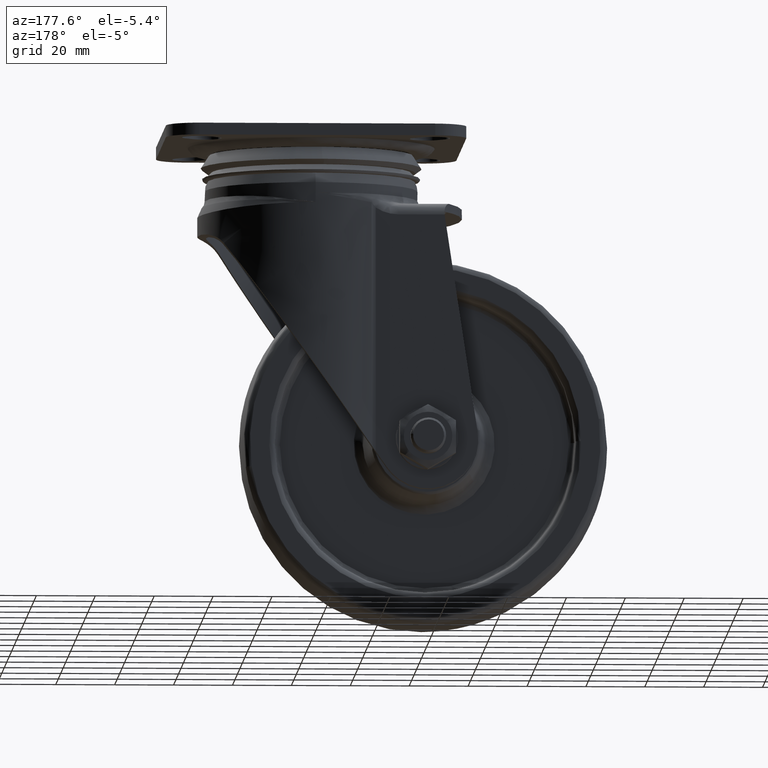
[diagram: clean part render]
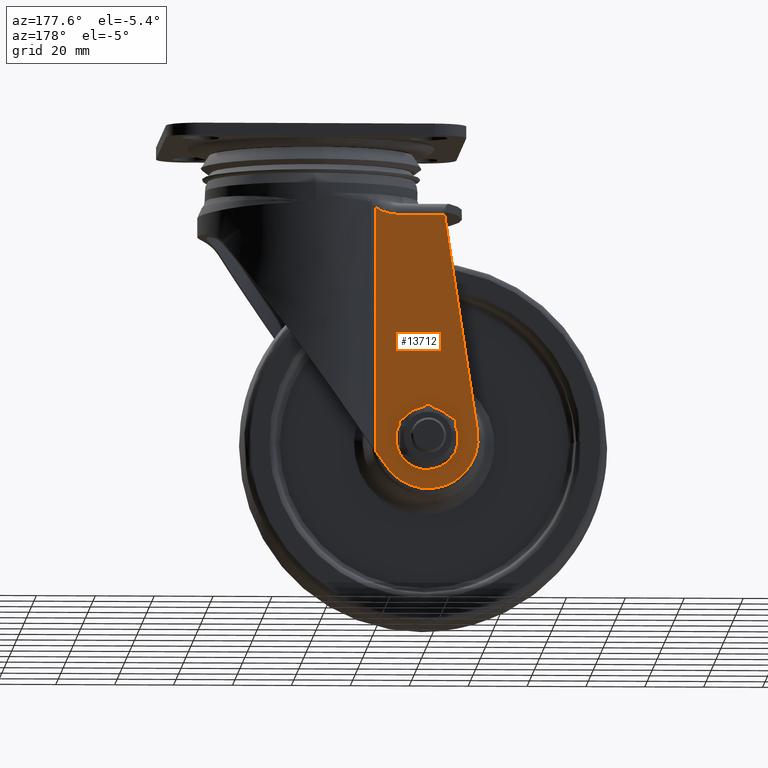
[diagram: same view with one face highlighted and labeled with its STEP entity id]
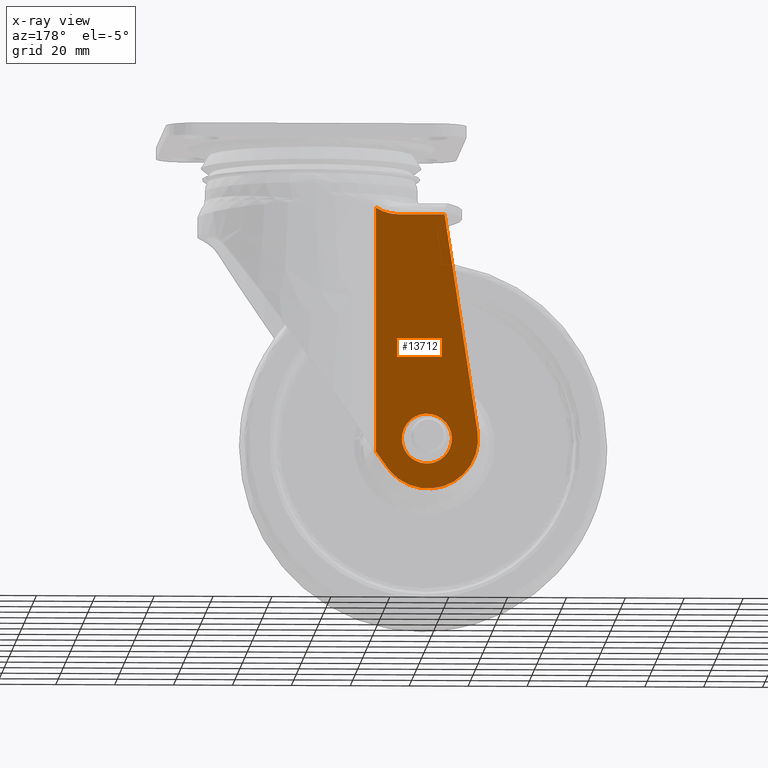
[diagram: x-ray of the same camera — body ghosted, the highlighted face saturated]
A machine part, auxiliary view. The second image highlights one B-rep face of the part: STEP entity #13712.
The next image is the same camera in x-ray: the body ghosted, the highlighted face saturated — about 0% of this face is hidden behind the body in this view.
In plain terms, the highlighted face is a freeform B-spline surface patch.
Its self-contained STEP definition (entity closure, byte-faithful):
#11381=CARTESIAN_POINT('',(-46.484216700755042,31.0,-104.981038605204900));
#11382=VERTEX_POINT('',#11381);
#11388=CARTESIAN_POINT('',(-38.000025000000001,31.0,-96.999908000000005));
#11389=VERTEX_POINT('',#11388);
#11390=CARTESIAN_POINT('',(-38.000025000000001,31.0,-96.999908000000005));
#11391=CARTESIAN_POINT('',(-45.996069840690261,31.000000000000004,-96.999907999999976));
#11392=CARTESIAN_POINT('',(-46.484216700755042,31.000000000000004,-104.981038605204900));
#11400=(BOUNDED_CURVE()B_SPLINE_CURVE(2,(#11390,#11391,#11392),.UNSPECIFIED.,.F.,.U.)B_SPLINE_CURVE_WITH_KNOTS((3,3),(0.500000000000000,0.739332962231474),.UNSPECIFIED.)CURVE()GEOMETRIC_REPRESENTATION_ITEM()RATIONAL_B_SPLINE_CURVE((1.0,0.719603993295461,0.976072041650710))REPRESENTATION_ITEM(''));
#11401=EDGE_CURVE('',#11389,#11382,#11400,.T.);
#11403=CARTESIAN_POINT('',(-29.515833299244971,31.0,-106.018869394795100));
#11404=VERTEX_POINT('',#11403);
#11405=CARTESIAN_POINT('',(-29.515833299244964,31.0,-106.018869394795080));
#11406=CARTESIAN_POINT('',(-29.499979000000003,30.999999999999996,-105.759653893723860));
#11407=CARTESIAN_POINT('',(-29.499979000000000,31.0,-105.499954000000000));
#11408=CARTESIAN_POINT('',(-29.499979000000000,31.000000000000007,-96.999907999999991));
#11409=CARTESIAN_POINT('',(-38.000025000000001,31.0,-96.999908000000005));
#11417=(BOUNDED_CURVE()B_SPLINE_CURVE(2,(#11405,#11406,#11407,#11408,#11409),.UNSPECIFIED.,.F.,.U.)B_SPLINE_CURVE_WITH_KNOTS((3,2,3),(0.239332962231474,0.250000000000000,0.500000000000000),.UNSPECIFIED.)CURVE()GEOMETRIC_REPRESENTATION_ITEM()RATIONAL_B_SPLINE_CURVE((0.976072041650711,0.987502787891087,1.0,0.707106781186548,1.0))REPRESENTATION_ITEM(''));
#11418=EDGE_CURVE('',#11404,#11389,#11417,.T.);
#11462=CARTESIAN_POINT('',(-38.000025000000001,31.0,-114.0));
#11463=VERTEX_POINT('',#11462);
#11464=CARTESIAN_POINT('',(-38.000025000000001,31.0,-114.0));
#11465=CARTESIAN_POINT('',(-30.003980159309751,31.0,-114.0));
#11466=CARTESIAN_POINT('',(-29.515833299244971,30.999999999999996,-106.018869394795130));
#11474=(BOUNDED_CURVE()B_SPLINE_CURVE(2,(#11464,#11465,#11466),.UNSPECIFIED.,.F.,.U.)B_SPLINE_CURVE_WITH_KNOTS((3,3),(0.0,0.239332962231474),.UNSPECIFIED.)CURVE()GEOMETRIC_REPRESENTATION_ITEM()RATIONAL_B_SPLINE_CURVE((1.0,0.719603993295461,0.976072041650710))REPRESENTATION_ITEM(''));
#11475=EDGE_CURVE('',#11463,#11404,#11474,.T.);
#11477=CARTESIAN_POINT('',(-46.484216700755042,31.000000000000004,-104.981038605204900));
#11478=CARTESIAN_POINT('',(-46.500071000000005,31.000000000000004,-105.240254106276130));
#11479=CARTESIAN_POINT('',(-46.500071000000013,31.0,-105.499954000000000));
#11480=CARTESIAN_POINT('',(-46.500071000000005,31.000000000000007,-114.000000000000010));
#11481=CARTESIAN_POINT('',(-38.000025000000001,31.0,-114.0));
#11489=(BOUNDED_CURVE()B_SPLINE_CURVE(2,(#11477,#11478,#11479,#11480,#11481),.UNSPECIFIED.,.F.,.U.)B_SPLINE_CURVE_WITH_KNOTS((3,2,3),(0.739332962231474,0.750000000000000,1.0),.UNSPECIFIED.)CURVE()GEOMETRIC_REPRESENTATION_ITEM()RATIONAL_B_SPLINE_CURVE((0.976072041650710,0.987502787891087,1.0,0.707106781186548,1.0))REPRESENTATION_ITEM(''));
#11490=EDGE_CURVE('',#11382,#11463,#11489,.T.);
#13623=CARTESIAN_POINT('',(-57.132414797236059,31.0,-22.053808328970039));
#13624=CARTESIAN_POINT('',(-57.132414797236059,31.0,-127.281410458735610));
#13625=CARTESIAN_POINT('',(-18.915571598374211,31.0,-22.053808328970039));
#13626=CARTESIAN_POINT('',(-18.915571598374211,31.0,-127.281410458735610));
#13627=B_SPLINE_SURFACE_WITH_KNOTS('',1,1,((#13623,#13625),(#13624,#13626)),.UNSPECIFIED.,.F.,.F.,.U.,(2,2),(2,2),(0.0,105.227602129765600),(0.0,38.216843198861852),.UNSPECIFIED.);
#13628=CARTESIAN_POINT('',(-44.026335102572553,31.0,-29.099989999999998));
#13629=VERTEX_POINT('',#13628);
#13630=CARTESIAN_POINT('',(-28.350002761904658,31.0,-29.099989999999998));
#13631=VERTEX_POINT('',#13630);
#13632=CARTESIAN_POINT('',(-44.026335102572553,31.0,-29.099989999999998));
#13633=CARTESIAN_POINT('',(-28.350002761904658,31.0,-29.099989999999998));
#13634=QUASI_UNIFORM_CURVE('',1,(#13632,#13633),.UNSPECIFIED.,.F.,.U.);
#13635=EDGE_CURVE('',#13629,#13631,#13634,.T.);
#13636=ORIENTED_EDGE('',*,*,#13635,.T.);
#13637=CARTESIAN_POINT('',(-20.651122311165452,31.0,-26.832532224560051));
#13638=VERTEX_POINT('',#13637);
#13639=CARTESIAN_POINT('',(-28.350002761904658,31.0,-29.099989999999998));
#13640=CARTESIAN_POINT('',(-28.008246133352579,31.0,-29.099989999999998));
#13641=CARTESIAN_POINT('',(-27.668733436726981,31.000000000000011,-29.086904766507079));
#13642=CARTESIAN_POINT('',(-26.993868202669450,31.0,-29.036474804936990));
#13643=CARTESIAN_POINT('',(-26.658516641540430,31.0,-28.999124383660700));
#13644=CARTESIAN_POINT('',(-25.658421796969041,31.0,-28.852318998477461));
#13645=CARTESIAN_POINT('',(-24.999578124164380,31.000000000000011,-28.708461126977159));
#13646=CARTESIAN_POINT('',(-24.185846022168999,31.0,-28.471360061510211));
#13647=CARTESIAN_POINT('',(-24.023595596693820,31.0,-28.421047510501449));
#13648=CARTESIAN_POINT('',(-23.700106948663290,31.000000000000011,-28.314519862425371));
#13649=CARTESIAN_POINT('',(-23.538700812656181,31.000000000000011,-28.258233880667230));
#13650=CARTESIAN_POINT('',(-23.059149574640401,31.0,-28.081453108572560));
#13651=CARTESIAN_POINT('',(-22.744731710701721,31.0,-27.952788528291851));
#13652=CARTESIAN_POINT('',(-22.126789855239259,31.000000000000021,-27.673166807089011));
#13653=CARTESIAN_POINT('',(-21.823259925804130,31.0,-27.522221817148989));
#13654=CARTESIAN_POINT('',(-21.227962211232992,31.000000000000011,-27.196262497637122));
#13655=CARTESIAN_POINT('',(-20.936181292825331,31.0,-27.021275043196901));
#13656=CARTESIAN_POINT('',(-20.651122311165452,31.0,-26.832532224560101));
#13657=B_SPLINE_CURVE_WITH_KNOTS('',3,(#13639,#13640,#13641,#13642,#13643,#13644,#13645,#13646,#13647,#13648,#13649,#13650,#13651,#13652,#13653,#13654,#13655,#13656),.UNSPECIFIED.,.F.,.U.,(4,2,2,2,2,2,2,2,4),(0.0,0.125000000000002,0.250000000000003,0.500000000000006,0.562500000000006,0.625000000000006,0.750000000000004,0.875000000000002,1.0),.UNSPECIFIED.);
#13658=EDGE_CURVE('',#13631,#13638,#13657,.T.);
#13659=ORIENTED_EDGE('',*,*,#13658,.T.);
#13660=CARTESIAN_POINT('',(-20.651122311165452,31.0,-109.900712536361400));
#13661=VERTEX_POINT('',#13660);
#13662=CARTESIAN_POINT('',(-20.651122311165452,31.0,-26.832532224560051));
#13663=CARTESIAN_POINT('',(-20.651122311165452,31.0,-109.900712536361400));
#13664=QUASI_UNIFORM_CURVE('',1,(#13662,#13663),.UNSPECIFIED.,.F.,.U.);
#13665=EDGE_CURVE('',#13638,#13661,#13664,.T.);
#13666=ORIENTED_EDGE('',*,*,#13665,.T.);
#13667=CARTESIAN_POINT('',(-24.576089803991849,31.0,-115.394420725650800));
#13668=VERTEX_POINT('',#13667);
#13669=CARTESIAN_POINT('',(-20.651122311165452,31.0,-109.900712536361400));
#13670=CARTESIAN_POINT('',(-24.576089803991849,31.0,-115.394420725650800));
#13671=QUASI_UNIFORM_CURVE('',1,(#13669,#13670),.UNSPECIFIED.,.F.,.U.);
#13672=EDGE_CURVE('',#13661,#13668,#13671,.T.);
#13673=ORIENTED_EDGE('',*,*,#13672,.T.);
#13674=CARTESIAN_POINT('',(-55.203097829770407,31.0,-102.919920410196990));
#13675=VERTEX_POINT('',#13674);
#13676=CARTESIAN_POINT('',(-55.203097829770407,31.0,-102.919920410196990));
#13677=CARTESIAN_POINT('',(-55.338635068466161,30.999999999999989,-103.797298917704690));
#13678=CARTESIAN_POINT('',(-55.485156198151238,31.000000000000021,-105.751027311420000));
#13679=CARTESIAN_POINT('',(-55.224761218328076,31.000000000000039,-108.413553822936810));
#13680=CARTESIAN_POINT('',(-54.508793594106443,30.999999999999940,-111.168730833700100));
#13681=CARTESIAN_POINT('',(-53.416461861995167,31.000000000000071,-113.675799434616490));
#13682=CARTESIAN_POINT('',(-51.734818648891363,30.999999999999869,-116.195346226075200));
#13683=CARTESIAN_POINT('',(-49.931853117525243,31.000000000000220,-118.088809688042900));
#13684=CARTESIAN_POINT('',(-47.783485972235063,31.000000000000369,-119.768725215460290));
#13685=CARTESIAN_POINT('',(-45.555195083214372,30.999999999998529,-121.021474239937400));
#13686=CARTESIAN_POINT('',(-42.930242609426621,31.000000000001261,-121.964718009293900));
#13687=CARTESIAN_POINT('',(-40.716359972867053,30.999999999999432,-122.398559051967500));
#13688=CARTESIAN_POINT('',(-38.233466364790189,31.000000000000231,-122.568101383370600));
#13689=CARTESIAN_POINT('',(-35.802473097274209,30.999999999999918,-122.390624221723800));
#13690=CARTESIAN_POINT('',(-33.266069179440223,31.000000000000039,-121.769720656557500));
#13691=CARTESIAN_POINT('',(-31.059481817139119,30.999999999999918,-120.898961711512600));
#13692=CARTESIAN_POINT('',(-28.730806608869091,31.000000000000469,-119.591490756570000));
#13693=CARTESIAN_POINT('',(-26.472039395823931,30.999999999998710,-117.749685121816700));
#13694=CARTESIAN_POINT('',(-25.126558886687029,31.000000000001730,-116.165001258539900));
#13695=CARTESIAN_POINT('',(-24.576089803991849,31.0,-115.394420725650800));
#13696=B_SPLINE_CURVE_WITH_KNOTS('',3,(#13676,#13677,#13678,#13679,#13680,#13681,#13682,#13683,#13684,#13685,#13686,#13687,#13688,#13689,#13690,#13691,#13692,#13693,#13694,#13695),.UNSPECIFIED.,.F.,.U.,(4,1,1,1,1,1,1,1,1,1,1,1,1,1,1,1,1,4),(0.000000301224539,2.663369975958908,5.859628475704227,7.990413510253504,11.186594412038710,14.027669178951751,17.046308403248219,18.999457226832430,22.195735742487940,24.681499444873761,27.344931114064160,28.943028884477162,32.139260713772380,34.625178549987247,36.755984620887183,39.241885704170294,42.615620538783901,45.456633427243453),.UNSPECIFIED.);
#13697=EDGE_CURVE('',#13675,#13668,#13696,.T.);
#13698=ORIENTED_EDGE('',*,*,#13697,.F.);
#13699=CARTESIAN_POINT('',(-55.203097829770407,31.0,-102.919920410196990));
#13700=CARTESIAN_POINT('',(-44.026335102572553,31.0,-29.099989999999998));
#13701=QUASI_UNIFORM_CURVE('',1,(#13699,#13700),.UNSPECIFIED.,.F.,.U.);
#13702=EDGE_CURVE('',#13675,#13629,#13701,.T.);
#13703=ORIENTED_EDGE('',*,*,#13702,.T.);
#13704=EDGE_LOOP('',(#13636,#13659,#13666,#13673,#13698,#13703));
#13705=FACE_OUTER_BOUND('',#13704,.T.);
#13706=ORIENTED_EDGE('',*,*,#11401,.T.);
#13707=ORIENTED_EDGE('',*,*,#11490,.T.);
#13708=ORIENTED_EDGE('',*,*,#11475,.T.);
#13709=ORIENTED_EDGE('',*,*,#11418,.T.);
#13710=EDGE_LOOP('',(#13706,#13707,#13708,#13709));
#13711=FACE_BOUND('',#13710,.T.);
#13712=ADVANCED_FACE('',(#13705,#13711),#13627,.F.);